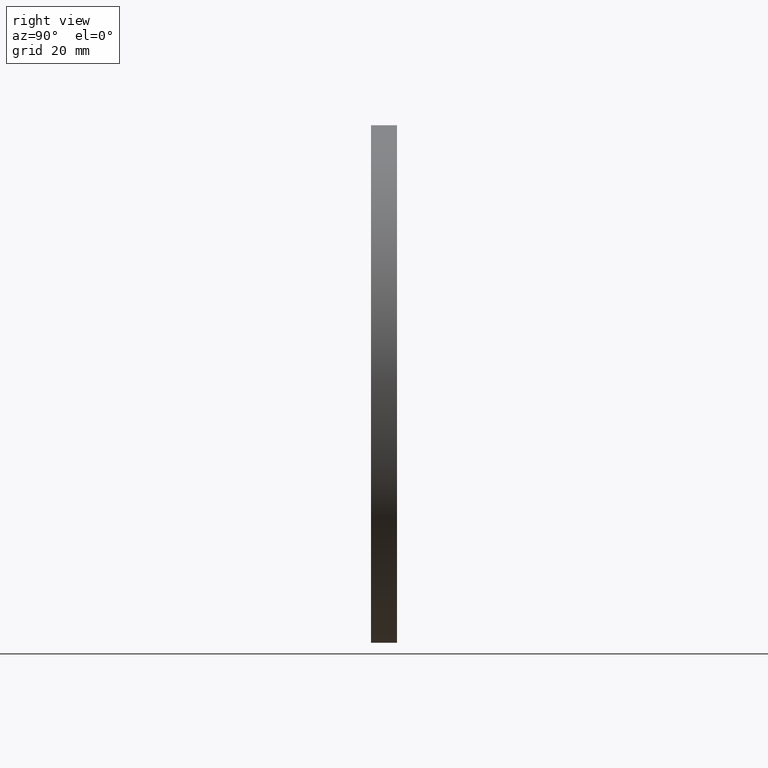
[diagram: clean part render]
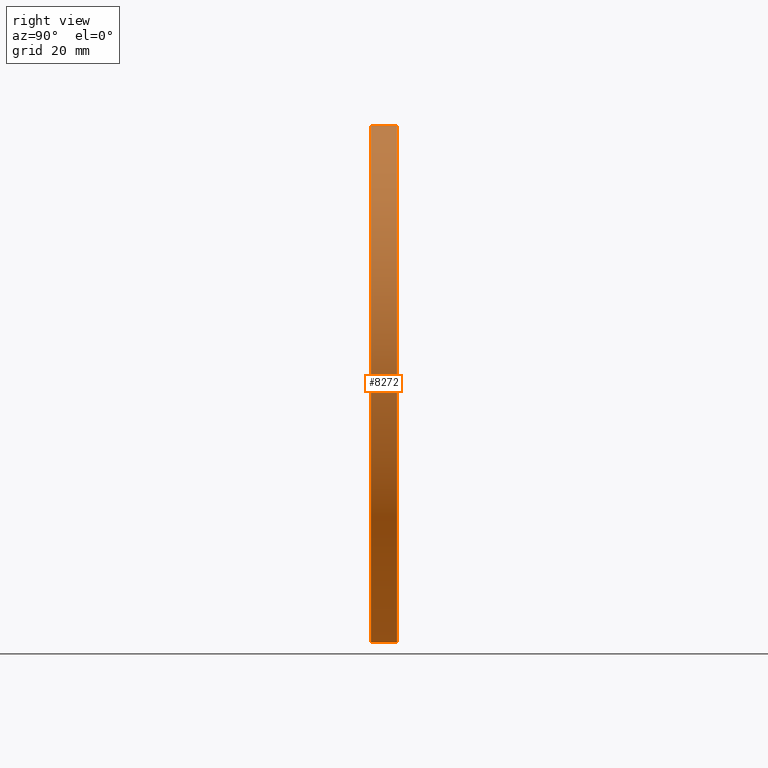
[diagram: same view with one face highlighted and labeled with its STEP entity id]
A machine part, right view. The second image highlights one B-rep face of the part: STEP entity #8272.
In plain terms, the highlighted cylindrical surface (bore or boss wall) has radius 60 mm, axis along (-0, -1, -0).
Its self-contained STEP definition (entity closure, byte-faithful):
#30 = AXIS2_PLACEMENT_3D ( 'NONE', #284, #10471, #5677 ) ;
#153 = DIRECTION ( 'NONE',  ( -0.000000000000000000, -1.000000000000000000, -0.000000000000000000 ) ) ;
#284 = CARTESIAN_POINT ( 'NONE',  ( 0.000000000000000000, 0.000000000000000000, 0.000000000000000000 ) ) ;
#511 = FACE_OUTER_BOUND ( 'NONE', #9409, .T. ) ;
#1190 = EDGE_LOOP ( 'NONE', ( #10747 ) ) ;
#2866 = EDGE_CURVE ( 'NONE', #3896, #3896, #6192, .T. ) ;
#2970 = VERTEX_POINT ( 'NONE', #11010 ) ;
#3564 = CARTESIAN_POINT ( 'NONE',  ( 0.000000000000000000, 6.000000000000000000, 0.000000000000000000 ) ) ;
#3896 = VERTEX_POINT ( 'NONE', #8135 ) ;
#4392 = CARTESIAN_POINT ( 'NONE',  ( 0.000000000000000000, 6.000000000000000000, 0.000000000000000000 ) ) ;
#4768 = AXIS2_PLACEMENT_3D ( 'NONE', #4392, #10425, #10603 ) ;
#4796 = EDGE_CURVE ( 'NONE', #2970, #2970, #10053, .T. ) ;
#5677 = DIRECTION ( 'NONE',  ( 0.000000000000000000, 0.000000000000000000, 1.000000000000000000 ) ) ;
#5947 = AXIS2_PLACEMENT_3D ( 'NONE', #3564, #153, #11047 ) ;
#6192 = CIRCLE ( 'NONE', #30, 60.00000000000000000 ) ;
#6341 = ORIENTED_EDGE ( 'NONE', *, *, #2866, .T. ) ;
#7283 = FACE_OUTER_BOUND ( 'NONE', #1190, .T. ) ;
#7642 = CYLINDRICAL_SURFACE ( 'NONE', #5947, 60.00000000000000000 ) ;
#8135 = CARTESIAN_POINT ( 'NONE',  ( 0.000000000000000000, 0.000000000000000000, 60.00000000000000000 ) ) ;
#8272 = ADVANCED_FACE ( 'NONE', ( #7283, #511 ), #7642, .T. ) ;
#9409 = EDGE_LOOP ( 'NONE', ( #6341 ) ) ;
#10053 = CIRCLE ( 'NONE', #4768, 60.00000000000000000 ) ;
#10425 = DIRECTION ( 'NONE',  ( 0.000000000000000000, 1.000000000000000000, 0.000000000000000000 ) ) ;
#10471 = DIRECTION ( 'NONE',  ( 0.000000000000000000, 1.000000000000000000, 0.000000000000000000 ) ) ;
#10603 = DIRECTION ( 'NONE',  ( 0.000000000000000000, 0.000000000000000000, 1.000000000000000000 ) ) ;
#10747 = ORIENTED_EDGE ( 'NONE', *, *, #4796, .F. ) ;
#11010 = CARTESIAN_POINT ( 'NONE',  ( 0.000000000000000000, 6.000000000000000000, 60.00000000000000000 ) ) ;
#11047 = DIRECTION ( 'NONE',  ( 0.000000000000000000, 0.000000000000000000, -1.000000000000000000 ) ) ;